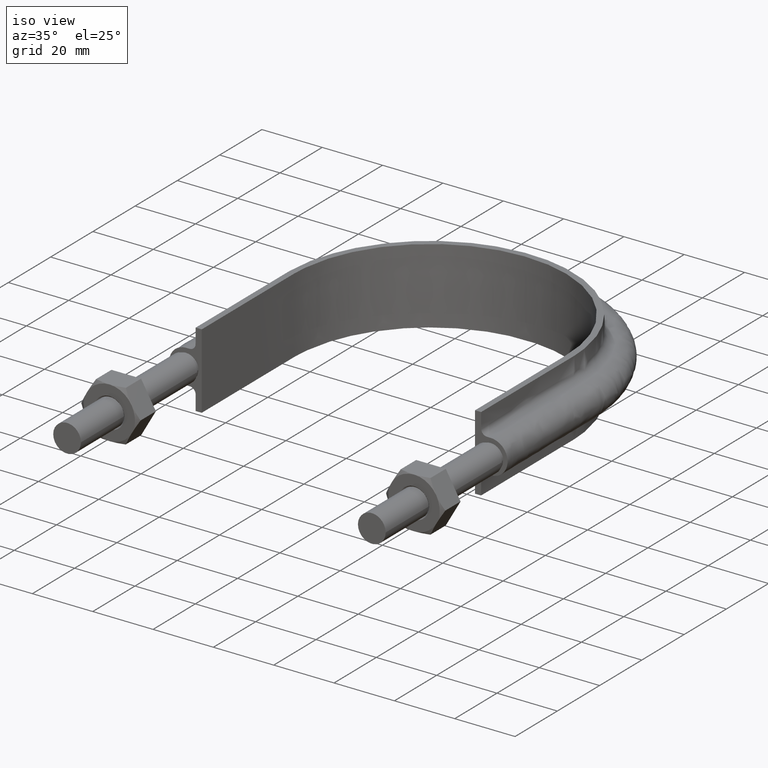
[diagram: clean part render]
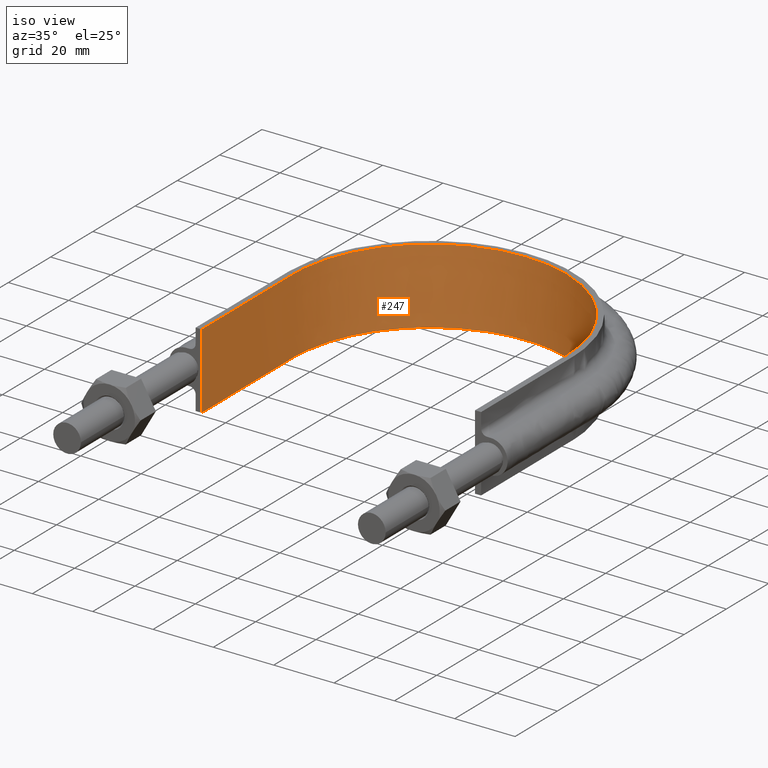
[diagram: same view with one face highlighted and labeled with its STEP entity id]
A machine part, iso view. The second image highlights one B-rep face of the part: STEP entity #247.
In plain terms, the highlighted face is a SurfaceOfExtrusion surface.
Its self-contained STEP definition (entity closure, byte-faithful):
#247 = ADVANCED_FACE( '', ( #361 ), #362, .T. );
#361 = FACE_OUTER_BOUND( '', #1187, .T. );
#362 = SURFACE_OF_LINEAR_EXTRUSION( '', #1188, #1189 );
#1187 = EDGE_LOOP( '', ( #1622, #1623, #1624, #1625 ) );
#1188 = B_SPLINE_CURVE_WITH_KNOTS( '', 3, ( #1626, #1627, #1628, #1629, #1630, #1631, #1632, #1633, #1634, #1635, #1636, #1637, #1638, #1639, #1640, #1641 ), .UNSPECIFIED., .F., .F., ( 4, 3, 1, 1, 1, 1, 1, 1, 3, 4 ), ( -8.93133047210300, -8.00000000000000, -7.00000000000000, -6.00000000000000, -5.00000000000000, -4.00000000000000, -3.00000000000000, -2.00000000000000, -1.00000000000000, -0.0686695278969956 ), .UNSPECIFIED. );
#1189 = VECTOR( '', #1642, 1000.00000000000 );
#1622 = ORIENTED_EDGE( '', *, *, #2025, .T. );
#1623 = ORIENTED_EDGE( '', *, *, #2038, .T. );
#1624 = ORIENTED_EDGE( '', *, *, #2035, .F. );
#1625 = ORIENTED_EDGE( '', *, *, #2030, .T. );
#1626 = CARTESIAN_POINT( '', ( 45.3000000000000, 56.3000000000000, 12.5000100000910 ) );
#1627 = CARTESIAN_POINT( '', ( 45.3000000000000, 70.7666666666667, 12.5000100000910 ) );
#1628 = CARTESIAN_POINT( '', ( 45.3000000000000, 85.2333333333333, 12.5000100000910 ) );
#1629 = CARTESIAN_POINT( '', ( 45.3000000000000, 99.7000000000000, 12.5000100000910 ) );
#1630 = CARTESIAN_POINT( '', ( 45.3000000000000, 106.461794206864, 12.5000100000910 ) );
#1631 = CARTESIAN_POINT( '', ( 42.2071641315033, 120.032157601825, 12.5000100000910 ) );
#1632 = CARTESIAN_POINT( '', ( 29.2082638356160, 136.324357375469, 12.5000100000910 ) );
#1633 = CARTESIAN_POINT( '', ( 10.4243086712368, 145.372209831110, 12.5000100000910 ) );
#1634 = CARTESIAN_POINT( '', ( -10.4243086712368, 145.372209831110, 12.5000100000910 ) );
#1635 = CARTESIAN_POINT( '', ( -29.2082638356159, 136.324357375469, 12.5000100000910 ) );
#1636 = CARTESIAN_POINT( '', ( -42.2071641315033, 120.032157601825, 12.5000100000910 ) );
#1637 = CARTESIAN_POINT( '', ( -45.3000000000000, 106.461794206864, 12.5000100000910 ) );
#1638 = CARTESIAN_POINT( '', ( -45.3000000000000, 99.7000000000000, 12.5000100000910 ) );
#1639 = CARTESIAN_POINT( '', ( -45.3000000000000, 85.2333333333333, 12.5000100000910 ) );
#1640 = CARTESIAN_POINT( '', ( -45.3000000000000, 70.7666666666667, 12.5000100000910 ) );
#1641 = CARTESIAN_POINT( '', ( -45.3000000000000, 56.3000000000000, 12.5000100000910 ) );
#1642 = DIRECTION( '', ( 0.000000000000000, 0.000000000000000, -1.00000000000000 ) );
#2025 = EDGE_CURVE( '', #2197, #2198, #2199, .T. );
#2030 = EDGE_CURVE( '', #2207, #2197, #2208, .T. );
#2035 = EDGE_CURVE( '', #2207, #2215, #2216, .T. );
#2038 = EDGE_CURVE( '', #2198, #2215, #2220, .F. );
#2197 = VERTEX_POINT( '', #2489 );
#2198 = VERTEX_POINT( '', #2490 );
#2199 = LINE( '', #2491, #2492 );
#2207 = VERTEX_POINT( '', #2541 );
#2208 = B_SPLINE_CURVE_WITH_KNOTS( '', 3, ( #2542, #2543, #2544, #2545, #2546, #2547, #2548, #2549, #2550, #2551, #2552, #2553, #2554, #2555, #2556, #2557, #2558, #2559, #2560, #2561, #2562, #2563, #2564, #2565, #2566, #2567, #2568, #2569, #2570, #2571, #2572, #2573, #2574, #2575, #2576, #2577, #2578, #2579, #2580, #2581, #2582, #2583, #2584, #2585, #2586, #2587, #2588, #2589, #2590, #2591, #2592, #2593, #2594, #2595, #2596, #2597, #2598, #2599, #2600, #2601, #2602, #2603, #2604, #2605, #2606, #2607, #2608, #2609, #2610, #2611, #2612, #2613, #2614, #2615, #2616, #2617, #2618, #2619, #2620, #2621, #2622, #2623, #2624, #2625 ), .UNSPECIFIED., .F., .F., ( 4, 1, 2, 2, 2, 2, 2, 2, 2, 2, 2, 2, 2, 2, 2, 2, 2, 2, 2, 2, 2, 2, 2, 2, 2, 2, 2, 2, 2, 2, 2, 2, 2, 2, 2, 2, 2, 2, 2, 2, 2, 1, 4 ), ( 6.93889390390723E-018, 0.0287543779946533, 0.0431315669919799, 0.0440301413043129, 0.0449287156166458, 0.0467258642413117, 0.0503201614906435, 0.0575087559893071, 0.0611030532386389, 0.0629002018633049, 0.0646973504879708, 0.0718859449866344, 0.0754802422359662, 0.0790745394852980, 0.0862631339839615, 0.0898574312332932, 0.0916545798579591, 0.0934517284826250, 0.100640322981289, 0.107828917479952, 0.111423214729284, 0.115017511978616, 0.122206106477279, 0.124003255101945, 0.125800403726611, 0.129394700975943, 0.136583295474606, 0.138380444099272, 0.140177592723938, 0.143771889973270, 0.150960484471934, 0.154554781721266, 0.158149078970598, 0.165337673469261, 0.168931970718593, 0.170729119343259, 0.172526267967925, 0.179714862466589, 0.183309159715921, 0.185106308340587, 0.186903456965253, 0.201280645962580, 0.230035023957236 ), .UNSPECIFIED. );
#2215 = VERTEX_POINT( '', #2693 );
#2216 = LINE( '', #2694, #2695 );
#2220 = B_SPLINE_CURVE_WITH_KNOTS( '', 3, ( #2709, #2710, #2711, #2712, #2713, #2714, #2715, #2716, #2717, #2718, #2719, #2720, #2721, #2722, #2723, #2724 ), .UNSPECIFIED., .F., .F., ( 4, 3, 1, 1, 1, 1, 1, 1, 3, 4 ), ( -8.93133047210300, -8.00000000000000, -7.00000000000000, -6.00000000000000, -5.00000000000000, -4.00000000000000, -3.00000000000000, -2.00000000000000, -1.00000000000000, -0.0686695278969956 ), .UNSPECIFIED. );
#2489 = CARTESIAN_POINT( '', ( -45.3000000000000, 56.3000000000000, 12.5000000000000 ) );
#2490 = CARTESIAN_POINT( '', ( -45.3000000000000, 56.3000000000000, -12.5000000000000 ) );
#2491 = CARTESIAN_POINT( '', ( -45.3000000000000, 56.3000000000000, 12.5000100000910 ) );
#2492 = VECTOR( '', #3113, 1000.00000000000 );
#2541 = CARTESIAN_POINT( '', ( 45.3000000000000, 56.3000000000000, 12.5000000000000 ) );
#2542 = CARTESIAN_POINT( '', ( 45.3000000000000, 56.3000000000000, 12.5000000000000 ) );
#2543 = CARTESIAN_POINT( '', ( 45.3000000000000, 65.8848205646283, 12.5000000000000 ) );
#2544 = CARTESIAN_POINT( '', ( 45.3000000000000, 80.2620514115707, 12.5000000000000 ) );
#2545 = CARTESIAN_POINT( '', ( 45.3000000000000, 94.6392822585131, 12.5000000000000 ) );
#2546 = CARTESIAN_POINT( '', ( 45.3000000000000, 99.7312181834718, 12.5000000000000 ) );
#2547 = CARTESIAN_POINT( '', ( 45.2997760120250, 100.030743285675, 12.5000000000000 ) );
#2548 = CARTESIAN_POINT( '', ( 45.2912777717044, 100.629774066281, 12.5000000000000 ) );
#2549 = CARTESIAN_POINT( '', ( 45.2840050595566, 100.929282161215, 12.5000000000000 ) );
#2550 = CARTESIAN_POINT( '', ( 45.2531480099003, 101.827784636791, 12.5000000000000 ) );
#2551 = CARTESIAN_POINT( '', ( 45.2204957104833, 102.427200024520, 12.5000000000000 ) );
#2552 = CARTESIAN_POINT( '', ( 45.0866957945141, 104.222494949273, 12.5000000000000 ) );
#2553 = CARTESIAN_POINT( '', ( 44.9504291017170, 105.407906322015, 12.5000000000000 ) );
#2554 = CARTESIAN_POINT( '', ( 44.4061177465217, 108.931168904230, 12.5000000000000 ) );
#2555 = CARTESIAN_POINT( '', ( 43.8636822485658, 111.236321194623, 12.5000000000000 ) );
#2556 = CARTESIAN_POINT( '', ( 42.7815683609983, 114.628729902663, 12.5000000000000 ) );
#2557 = CARTESIAN_POINT( '', ( 42.3758385758422, 115.748577639201, 12.5000000000000 ) );
#2558 = CARTESIAN_POINT( '', ( 41.6971261299260, 117.411288741198, 12.5000000000000 ) );
#2559 = CARTESIAN_POINT( '', ( 41.4587485176160, 117.963522487295, 12.5000000000000 ) );
#2560 = CARTESIAN_POINT( '', ( 40.9623939009448, 119.052686028662, 12.5000000000000 ) );
#2561 = CARTESIAN_POINT( '', ( 40.7040140940422, 119.590633634307, 12.5000000000000 ) );
#2562 = CARTESIAN_POINT( '', ( 39.3618284958927, 122.247672872113, 12.5000000000000 ) );
#2563 = CARTESIAN_POINT( '', ( 38.1287732829049, 124.269715209024, 12.5000000000000 ) );
#2564 = CARTESIAN_POINT( '', ( 36.0483927303405, 127.152702706861, 12.5000000000000 ) );
#2565 = CARTESIAN_POINT( '', ( 35.3162279376428, 128.088530904417, 12.5000000000000 ) );
#2566 = CARTESIAN_POINT( '', ( 33.7729613787723, 129.908858607226, 12.5000000000000 ) );
#2567 = CARTESIAN_POINT( '', ( 32.9584983694079, 130.796352407073, 12.5000000000000 ) );
#2568 = CARTESIAN_POINT( '', ( 30.4343658146005, 133.337344556213, 12.5000000000000 ) );
#2569 = CARTESIAN_POINT( '', ( 28.6360692622386, 134.881493975360, 12.5000000000000 ) );
#2570 = CARTESIAN_POINT( '', ( 25.7668653719942, 136.974964438366, 12.5000000000000 ) );
#2571 = CARTESIAN_POINT( '', ( 24.7819445161321, 137.635801019642, 12.5000000000000 ) );
#2572 = CARTESIAN_POINT( '', ( 23.2616146962020, 138.571356100425, 12.5000000000000 ) );
#2573 = CARTESIAN_POINT( '', ( 22.7476691870376, 138.873910471946, 12.5000000000000 ) );
#2574 = CARTESIAN_POINT( '', ( 21.7052773821733, 139.460213200769, 12.5000000000000 ) );
#2575 = CARTESIAN_POINT( '', ( 21.1756556167052, 139.744537298346, 12.5000000000000 ) );
#2576 = CARTESIAN_POINT( '', ( 18.5103111801554, 141.108501344270, 12.5000000000000 ) );
#2577 = CARTESIAN_POINT( '', ( 16.3185331092019, 142.020394560135, 12.5000000000000 ) );
#2578 = CARTESIAN_POINT( '', ( 11.8189661583873, 143.494646423883, 12.5000000000000 ) );
#2579 = CARTESIAN_POINT( '', ( 9.51076198777612, 144.055753822213, 12.5000000000000 ) );
#2580 = CARTESIAN_POINT( '', ( 5.95662532797854, 144.620734661634, 12.5000000000000 ) );
#2581 = CARTESIAN_POINT( '', ( 4.76788785050948, 144.761147485507, 12.5000000000000 ) );
#2582 = CARTESIAN_POINT( '', ( 2.39647070391243, 144.947851083060, 12.5000000000000 ) );
#2583 = CARTESIAN_POINT( '', ( 1.21153117527852, 144.994499013257, 12.5000000000000 ) );
#2584 = CARTESIAN_POINT( '', ( -2.34101805316259, 144.996625356462, 12.5000000000000 ) );
#2585 = CARTESIAN_POINT( '', ( -4.70637779815008, 144.815464639074, 12.5000000000000 ) );
#2586 = CARTESIAN_POINT( '', ( -7.65915858277231, 144.351020241084, 12.5000000000000 ) );
#2587 = CARTESIAN_POINT( '', ( -8.25083455194666, 144.245862246466, 12.5000000000000 ) );
#2588 = CARTESIAN_POINT( '', ( -9.42653190172397, 144.012409776832, 12.5000000000000 ) );
#2589 = CARTESIAN_POINT( '', ( -10.0101476162836, 143.884250803394, 12.5000000000000 ) );
#2590 = CARTESIAN_POINT( '', ( -11.7484468334343, 143.465883377835, 12.5000000000000 ) );
#2591 = CARTESIAN_POINT( '', ( -12.8906527223969, 143.141974327520, 12.5000000000000 ) );
#2592 = CARTESIAN_POINT( '', ( -16.2689101217008, 142.039631660257, 12.5000000000000 ) );
#2593 = CARTESIAN_POINT( '', ( -18.4569925447982, 141.131639060066, 12.5000000000000 ) );
#2594 = CARTESIAN_POINT( '', ( -21.1113012403399, 139.778432115202, 12.5000000000000 ) );
#2595 = CARTESIAN_POINT( '', ( -21.6380918925234, 139.496795189040, 12.5000000000000 ) );
#2596 = CARTESIAN_POINT( '', ( -22.6833837807201, 138.911132577781, 12.5000000000000 ) );
#2597 = CARTESIAN_POINT( '', ( -23.2017061819432, 138.607128404409, 12.5000000000000 ) );
#2598 = CARTESIAN_POINT( '', ( -24.7303471350012, 137.669564342871, 12.5000000000000 ) );
#2599 = CARTESIAN_POINT( '', ( -25.7191011998732, 137.007938274698, 12.5000000000000 ) );
#2600 = CARTESIAN_POINT( '', ( -28.5955069273408, 134.914712609781, 12.5000000000000 ) );
#2601 = CARTESIAN_POINT( '', ( -30.3928386158800, 133.374206663575, 12.5000000000000 ) );
#2602 = CARTESIAN_POINT( '', ( -32.9098802473356, 130.847665641424, 12.5000000000000 ) );
#2603 = CARTESIAN_POINT( '', ( -33.7201063858692, 129.968144324298, 12.5000000000000 ) );
#2604 = CARTESIAN_POINT( '', ( -35.2745676507393, 128.140548074671, 12.5000000000000 ) );
#2605 = CARTESIAN_POINT( '', ( -36.0108033379542, 127.202093103808, 12.5000000000000 ) );
#2606 = CARTESIAN_POINT( '', ( -38.0999731742671, 124.314831254988, 12.5000000000000 ) );
#2607 = CARTESIAN_POINT( '', ( -39.3343184899538, 122.294697861215, 12.5000000000000 ) );
#2608 = CARTESIAN_POINT( '', ( -40.9440306770637, 119.119061107137, 12.5000000000000 ) );
#2609 = CARTESIAN_POINT( '', ( -41.4398476877741, 118.036003764877, 12.5000000000000 ) );
#2610 = CARTESIAN_POINT( '', ( -42.1215319712500, 116.374102391935, 12.5000000000000 ) );
#2611 = CARTESIAN_POINT( '', ( -42.3385970417913, 115.813283805220, 12.5000000000000 ) );
#2612 = CARTESIAN_POINT( '', ( -42.7483267135284, 114.689073533850, 12.5000000000000 ) );
#2613 = CARTESIAN_POINT( '', ( -42.9414928116360, 114.124536114339, 12.5000000000000 ) );
#2614 = CARTESIAN_POINT( '', ( -43.8499727665167, 111.289925270555, 12.5000000000000 ) );
#2615 = CARTESIAN_POINT( '', ( -44.3947073189255, 108.984386713932, 12.5000000000000 ) );
#2616 = CARTESIAN_POINT( '', ( -44.9423619636432, 105.470058132087, 12.5000000000000 ) );
#2617 = CARTESIAN_POINT( '', ( -45.0797192826280, 104.289218942135, 12.5000000000000 ) );
#2618 = CARTESIAN_POINT( '', ( -45.2157289936545, 102.503401000383, 12.5000000000000 ) );
#2619 = CARTESIAN_POINT( '', ( -45.2493799141445, 101.905563911382, 12.5000000000000 ) );
#2620 = CARTESIAN_POINT( '', ( -45.2926573150340, 100.705446197624, 12.5000000000000 ) );
#2621 = CARTESIAN_POINT( '', ( -45.3000000000000, 100.105377557368, 12.5000000000000 ) );
#2622 = CARTESIAN_POINT( '', ( -45.3000000000000, 94.7047145708432, 12.5000000000000 ) );
#2623 = CARTESIAN_POINT( '', ( -45.3000000000000, 80.3029466067771, 12.5000000000000 ) );
#2624 = CARTESIAN_POINT( '', ( -45.3000000000000, 65.9011786427109, 12.5000000000000 ) );
#2625 = CARTESIAN_POINT( '', ( -45.3000000000000, 56.3000000000000, 12.5000000000000 ) );
#2693 = CARTESIAN_POINT( '', ( 45.3000000000000, 56.3000000000000, -12.5000000000000 ) );
#2694 = CARTESIAN_POINT( '', ( 45.3000000000000, 56.3000000000000, 12.5000100000910 ) );
#2695 = VECTOR( '', #3117, 1000.00000000000 );
#2709 = CARTESIAN_POINT( '', ( 45.3000000000000, 56.3000000000000, -12.5000000000000 ) );
#2710 = CARTESIAN_POINT( '', ( 45.3000000000000, 70.7666666666667, -12.5000000000000 ) );
#2711 = CARTESIAN_POINT( '', ( 45.3000000000000, 85.2333333333333, -12.5000000000000 ) );
#2712 = CARTESIAN_POINT( '', ( 45.3000000000000, 99.7000000000000, -12.5000000000000 ) );
#2713 = CARTESIAN_POINT( '', ( 45.3000000000000, 106.461794206864, -12.5000000000000 ) );
#2714 = CARTESIAN_POINT( '', ( 42.2071641315033, 120.032157601825, -12.5000000000000 ) );
#2715 = CARTESIAN_POINT( '', ( 29.2082638356160, 136.324357375469, -12.5000000000000 ) );
#2716 = CARTESIAN_POINT( '', ( 10.4243086712368, 145.372209831110, -12.5000000000000 ) );
#2717 = CARTESIAN_POINT( '', ( -10.4243086712368, 145.372209831110, -12.5000000000000 ) );
#2718 = CARTESIAN_POINT( '', ( -29.2082638356159, 136.324357375469, -12.5000000000000 ) );
#2719 = CARTESIAN_POINT( '', ( -42.2071641315033, 120.032157601825, -12.5000000000000 ) );
#2720 = CARTESIAN_POINT( '', ( -45.3000000000000, 106.461794206864, -12.5000000000000 ) );
#2721 = CARTESIAN_POINT( '', ( -45.3000000000000, 99.7000000000000, -12.5000000000000 ) );
#2722 = CARTESIAN_POINT( '', ( -45.3000000000000, 85.2333333333333, -12.5000000000000 ) );
#2723 = CARTESIAN_POINT( '', ( -45.3000000000000, 70.7666666666667, -12.5000000000000 ) );
#2724 = CARTESIAN_POINT( '', ( -45.3000000000000, 56.3000000000000, -12.5000000000000 ) );
#3113 = DIRECTION( '', ( 0.000000000000000, 0.000000000000000, -1.00000000000000 ) );
#3117 = DIRECTION( '', ( 0.000000000000000, 0.000000000000000, -1.00000000000000 ) );